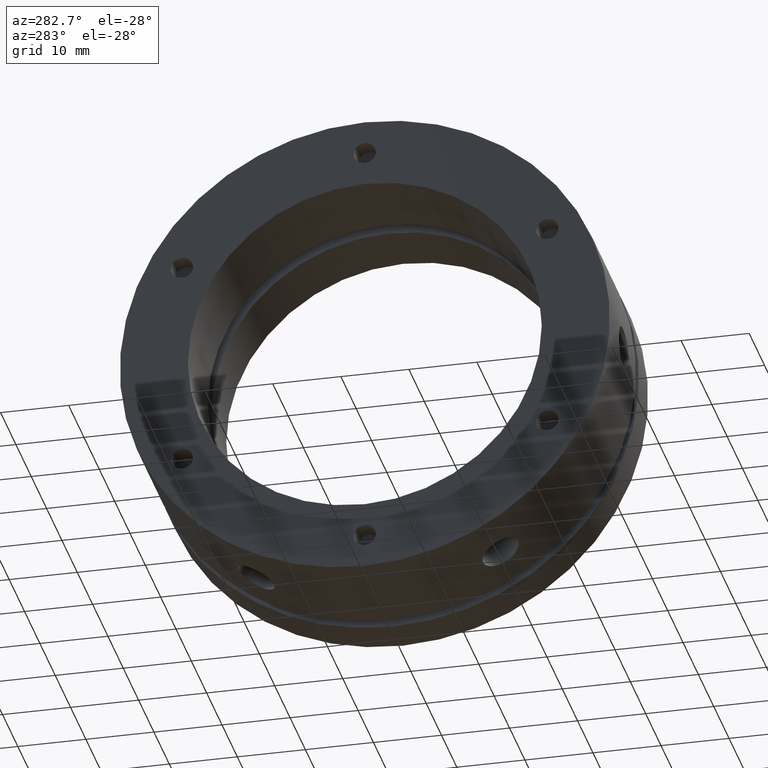
[diagram: clean part render]
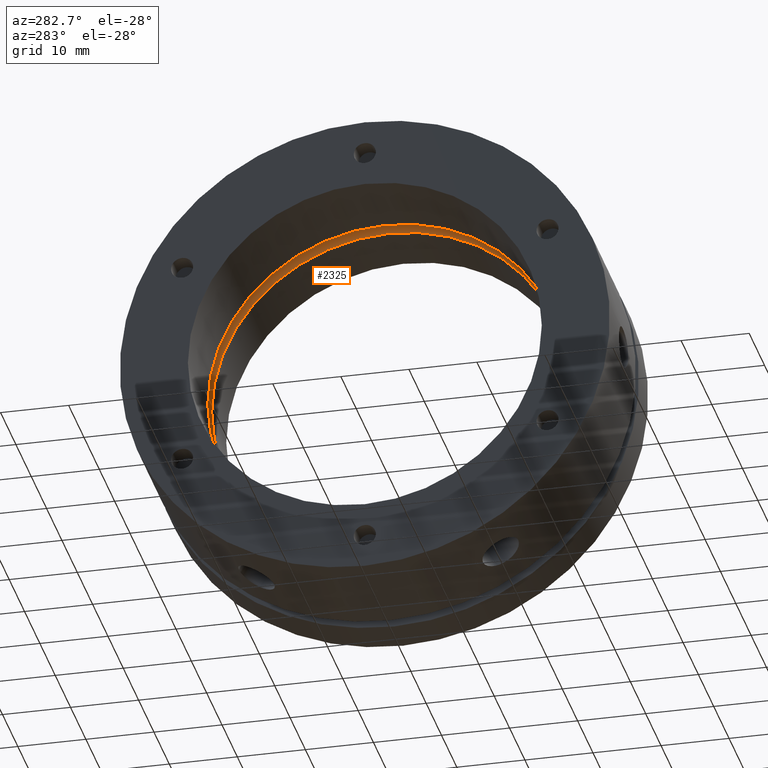
[diagram: same view with one face highlighted and labeled with its STEP entity id]
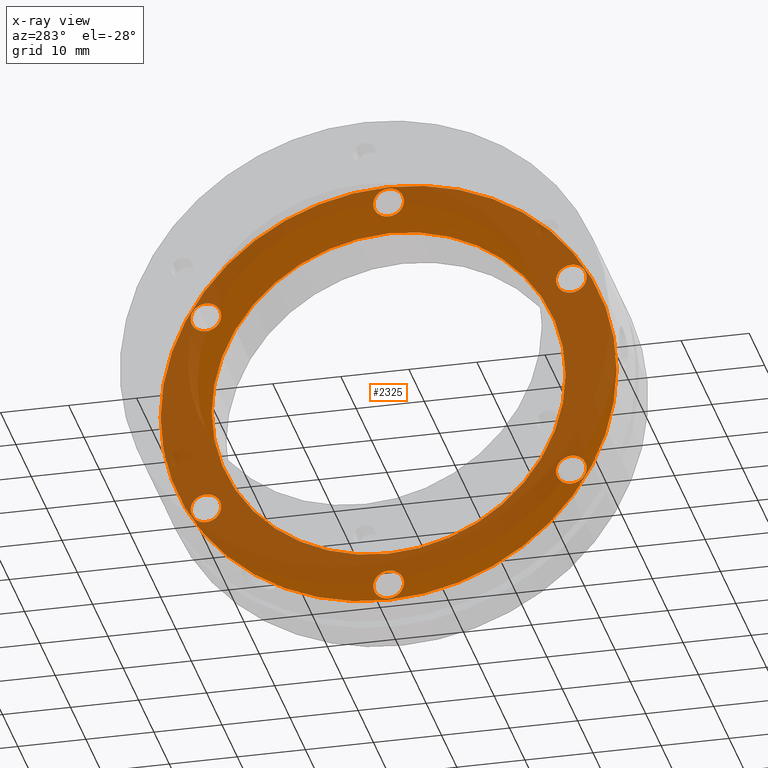
[diagram: x-ray of the same camera — body ghosted, the highlighted face saturated]
A machine part, auxiliary view. The second image highlights one B-rep face of the part: STEP entity #2325.
The next image is the same camera in x-ray: the body ghosted, the highlighted face saturated — about 67% of this face is hidden behind the body in this view.
In plain terms, the highlighted planar face has unit normal (1, 0, 0).
Its self-contained STEP definition (entity closure, byte-faithful):
#61 = AXIS2_PLACEMENT_3D ( 'NONE', #2941, #2942, #2943 ) ;
#64 = AXIS2_PLACEMENT_3D ( 'NONE', #3029, #3030, #3031 ) ;
#67 = AXIS2_PLACEMENT_3D ( 'NONE', #3084, #3085, #3086 ) ;
#69 = AXIS2_PLACEMENT_3D ( 'NONE', #3097, #3098, #3099 ) ;
#72 = AXIS2_PLACEMENT_3D ( 'NONE', #3110, #3111, #3112 ) ;
#74 = AXIS2_PLACEMENT_3D ( 'NONE', #3123, #3124, #3125 ) ;
#91 = AXIS2_PLACEMENT_3D ( 'NONE', #3207, #3205, #3211 ) ;
#109 = EDGE_LOOP ( 'NONE', ( #314, #315 ) ) ;
#110 = EDGE_LOOP ( 'NONE', ( #306, #307 ) ) ;
#113 = EDGE_LOOP ( 'NONE', ( #318, #319 ) ) ;
#123 = EDGE_LOOP ( 'NONE', ( #310, #311 ) ) ;
#306 = ORIENTED_EDGE ( 'NONE', *, *, #4668, .F. ) ;
#307 = ORIENTED_EDGE ( 'NONE', *, *, #1390, .F. ) ;
#308 = ORIENTED_EDGE ( 'NONE', *, *, #1402, .T. ) ;
#309 = ORIENTED_EDGE ( 'NONE', *, *, #2280, .T. ) ;
#310 = ORIENTED_EDGE ( 'NONE', *, *, #1397, .T. ) ;
#311 = ORIENTED_EDGE ( 'NONE', *, *, #2275, .T. ) ;
#312 = ORIENTED_EDGE ( 'NONE', *, *, #1396, .T. ) ;
#313 = ORIENTED_EDGE ( 'NONE', *, *, #2270, .T. ) ;
#314 = ORIENTED_EDGE ( 'NONE', *, *, #1400, .T. ) ;
#315 = ORIENTED_EDGE ( 'NONE', *, *, #2264, .T. ) ;
#316 = ORIENTED_EDGE ( 'NONE', *, *, #1399, .T. ) ;
#317 = ORIENTED_EDGE ( 'NONE', *, *, #2255, .T. ) ;
#318 = ORIENTED_EDGE ( 'NONE', *, *, #1436, .T. ) ;
#319 = ORIENTED_EDGE ( 'NONE', *, *, #2244, .T. ) ;
#320 = ORIENTED_EDGE ( 'NONE', *, *, #4723, .F. ) ;
#321 = ORIENTED_EDGE ( 'NONE', *, *, #1406, .F. ) ;
#726 = CIRCLE ( 'NONE', #909, 26.00000000000000400 ) ;
#733 = CIRCLE ( 'NONE', #982, 2.250000000000000400 ) ;
#734 = CIRCLE ( 'NONE', #981, 2.249999999999998700 ) ;
#736 = CIRCLE ( 'NONE', #984, 2.250000000000000400 ) ;
#737 = CIRCLE ( 'NONE', #985, 2.250000000000001800 ) ;
#739 = CIRCLE ( 'NONE', #987, 2.249999999999998700 ) ;
#743 = CIRCLE ( 'NONE', #991, 33.50000000000000700 ) ;
#771 = CIRCLE ( 'NONE', #1021, 2.250000000000000400 ) ;
#828 = CIRCLE ( 'NONE', #61, 2.250000000000000400 ) ;
#835 = CIRCLE ( 'NONE', #64, 2.250000000000000400 ) ;
#909 = AXIS2_PLACEMENT_3D ( 'NONE', #2152, #2153, #2154 ) ;
#981 = AXIS2_PLACEMENT_3D ( 'NONE', #2170, #2171, #2172 ) ;
#982 = AXIS2_PLACEMENT_3D ( 'NONE', #2173, #2174, #2175 ) ;
#984 = AXIS2_PLACEMENT_3D ( 'NONE', #2179, #2180, #2181 ) ;
#985 = AXIS2_PLACEMENT_3D ( 'NONE', #2182, #2183, #2184 ) ;
#987 = AXIS2_PLACEMENT_3D ( 'NONE', #2188, #2189, #2190 ) ;
#991 = AXIS2_PLACEMENT_3D ( 'NONE', #2201, #2202, #2203 ) ;
#1021 = AXIS2_PLACEMENT_3D ( 'NONE', #2605, #2606, #2607 ) ;
#1050 = VERTEX_POINT ( 'NONE', #1999 ) ;
#1051 = VERTEX_POINT ( 'NONE', #2000 ) ;
#1056 = VERTEX_POINT ( 'NONE', #2005 ) ;
#1057 = VERTEX_POINT ( 'NONE', #2006 ) ;
#1064 = VERTEX_POINT ( 'NONE', #2013 ) ;
#1065 = VERTEX_POINT ( 'NONE', #2014 ) ;
#1066 = VERTEX_POINT ( 'NONE', #2015 ) ;
#1069 = VERTEX_POINT ( 'NONE', #2018 ) ;
#1071 = VERTEX_POINT ( 'NONE', #2020 ) ;
#1072 = VERTEX_POINT ( 'NONE', #2021 ) ;
#1077 = VERTEX_POINT ( 'NONE', #2026 ) ;
#1078 = VERTEX_POINT ( 'NONE', #2027 ) ;
#1084 = VERTEX_POINT ( 'NONE', #2033 ) ;
#1087 = VERTEX_POINT ( 'NONE', #2036 ) ;
#1147 = VERTEX_POINT ( 'NONE', #2084 ) ;
#1161 = VERTEX_POINT ( 'NONE', #2096 ) ;
#1182 = EDGE_LOOP ( 'NONE', ( #308, #309 ) ) ;
#1189 = EDGE_LOOP ( 'NONE', ( #320, #321 ) ) ;
#1203 = EDGE_LOOP ( 'NONE', ( #316, #317 ) ) ;
#1212 = EDGE_LOOP ( 'NONE', ( #312, #313 ) ) ;
#1390 = EDGE_CURVE ( 'NONE', #1147, #1161, #726, .T. ) ;
#1396 = EDGE_CURVE ( 'NONE', #1072, #1071, #734, .T. ) ;
#1397 = EDGE_CURVE ( 'NONE', #1078, #1077, #733, .T. ) ;
#1399 = EDGE_CURVE ( 'NONE', #1064, #1069, #736, .T. ) ;
#1400 = EDGE_CURVE ( 'NONE', #1066, #1065, #737, .T. ) ;
#1402 = EDGE_CURVE ( 'NONE', #1084, #1087, #739, .T. ) ;
#1406 = EDGE_CURVE ( 'NONE', #1056, #1057, #743, .T. ) ;
#1436 = EDGE_CURVE ( 'NONE', #1050, #1051, #771, .T. ) ;
#1999 = CARTESIAN_POINT ( 'NONE',  ( 15.49999999999998900, 26.84678751731763000, 13.24999999999998900 ) ) ;
#2000 = CARTESIAN_POINT ( 'NONE',  ( 15.49999999999998900, 26.84678751731763000, 17.74999999999998900 ) ) ;
#2005 = CARTESIAN_POINT ( 'NONE',  ( 15.50000000000000400, 4.102566777143634600E-015, -33.50000000000000700 ) ) ;
#2006 = CARTESIAN_POINT ( 'NONE',  ( 15.50000000000000400, 0.0000000000000000000, 33.50000000000000700 ) ) ;
#2013 = CARTESIAN_POINT ( 'NONE',  ( 15.49999999999998900, 26.84678751731760800, -17.75000000000002500 ) ) ;
#2014 = CARTESIAN_POINT ( 'NONE',  ( 15.49999999999998900, -4.165346470191845000E-015, -28.75000000000001800 ) ) ;
#2015 = CARTESIAN_POINT ( 'NONE',  ( 15.49999999999998900, -4.440891999999999900E-015, -33.25000000000002100 ) ) ;
#2018 = CARTESIAN_POINT ( 'NONE',  ( 15.49999999999998900, 26.84678751731760800, -13.25000000000002500 ) ) ;
#2020 = CARTESIAN_POINT ( 'NONE',  ( 15.49999999999998900, -26.84678751731762200, -13.25000000000000400 ) ) ;
#2021 = CARTESIAN_POINT ( 'NONE',  ( 15.49999999999998900, -26.84678751731762200, -17.75000000000000400 ) ) ;
#2026 = CARTESIAN_POINT ( 'NONE',  ( 15.49999999999998900, -26.84678751731761200, 17.75000000000001400 ) ) ;
#2027 = CARTESIAN_POINT ( 'NONE',  ( 15.49999999999998900, -26.84678751731761200, 13.25000000000001400 ) ) ;
#2033 = CARTESIAN_POINT ( 'NONE',  ( 15.49999999999998900, 0.0000000000000000000, 28.75000000000001800 ) ) ;
#2036 = CARTESIAN_POINT ( 'NONE',  ( 15.49999999999998900, 2.755455298081546700E-016, 33.25000000000001400 ) ) ;
#2084 = CARTESIAN_POINT ( 'NONE',  ( 15.50000000000000500, 3.184081677783118600E-015, 26.00000000000000400 ) ) ;
#2096 = CARTESIAN_POINT ( 'NONE',  ( 15.50000000000000500, 0.0000000000000000000, -26.00000000000000400 ) ) ;
#2152 = CARTESIAN_POINT ( 'NONE',  ( 15.50000000000000500, 0.0000000000000000000, 0.0000000000000000000 ) ) ;
#2153 = DIRECTION ( 'NONE',  ( -1.000000000000000000, -0.0000000000000000000, -0.0000000000000000000 ) ) ;
#2154 = DIRECTION ( 'NONE',  ( 0.0000000000000000000, 0.0000000000000000000, -1.000000000000000000 ) ) ;
#2170 = CARTESIAN_POINT ( 'NONE',  ( 15.49999999999998900, -26.84678751731762200, -15.50000000000000400 ) ) ;
#2171 = DIRECTION ( 'NONE',  ( 1.000000000000000000, 0.0000000000000000000, 0.0000000000000000000 ) ) ;
#2172 = DIRECTION ( 'NONE',  ( 0.0000000000000000000, 0.0000000000000000000, -1.000000000000000000 ) ) ;
#2173 = CARTESIAN_POINT ( 'NONE',  ( 15.49999999999998900, -26.84678751731761200, 15.50000000000001400 ) ) ;
#2174 = DIRECTION ( 'NONE',  ( 1.000000000000000000, 0.0000000000000000000, 0.0000000000000000000 ) ) ;
#2175 = DIRECTION ( 'NONE',  ( 0.0000000000000000000, 0.0000000000000000000, -1.000000000000000000 ) ) ;
#2179 = CARTESIAN_POINT ( 'NONE',  ( 15.49999999999998900, 26.84678751731760800, -15.50000000000002700 ) ) ;
#2180 = DIRECTION ( 'NONE',  ( 1.000000000000000000, 0.0000000000000000000, 0.0000000000000000000 ) ) ;
#2181 = DIRECTION ( 'NONE',  ( 0.0000000000000000000, 0.0000000000000000000, -1.000000000000000000 ) ) ;
#2182 = CARTESIAN_POINT ( 'NONE',  ( 15.49999999999998900, -4.440891999999999900E-015, -31.00000000000002100 ) ) ;
#2183 = DIRECTION ( 'NONE',  ( 1.000000000000000000, 0.0000000000000000000, 0.0000000000000000000 ) ) ;
#2184 = DIRECTION ( 'NONE',  ( 0.0000000000000000000, 0.0000000000000000000, -1.000000000000000000 ) ) ;
#2188 = CARTESIAN_POINT ( 'NONE',  ( 15.49999999999998900, 0.0000000000000000000, 31.00000000000001800 ) ) ;
#2189 = DIRECTION ( 'NONE',  ( 1.000000000000000000, 0.0000000000000000000, 0.0000000000000000000 ) ) ;
#2190 = DIRECTION ( 'NONE',  ( 0.0000000000000000000, 0.0000000000000000000, -1.000000000000000000 ) ) ;
#2201 = CARTESIAN_POINT ( 'NONE',  ( 15.50000000000000400, 0.0000000000000000000, 0.0000000000000000000 ) ) ;
#2202 = DIRECTION ( 'NONE',  ( 1.000000000000000000, -0.0000000000000000000, -0.0000000000000000000 ) ) ;
#2203 = DIRECTION ( 'NONE',  ( 0.0000000000000000000, 0.0000000000000000000, 1.000000000000000000 ) ) ;
#2244 = EDGE_CURVE ( 'NONE', #1051, #1050, #828, .T. ) ;
#2255 = EDGE_CURVE ( 'NONE', #1069, #1064, #835, .T. ) ;
#2264 = EDGE_CURVE ( 'NONE', #1065, #1066, #3591, .T. ) ;
#2270 = EDGE_CURVE ( 'NONE', #1071, #1072, #3601, .T. ) ;
#2275 = EDGE_CURVE ( 'NONE', #1077, #1078, #3608, .T. ) ;
#2280 = EDGE_CURVE ( 'NONE', #1087, #1084, #3616, .T. ) ;
#2325 = ADVANCED_FACE ( 'NONE', ( #3656, #3663, #3659, #3657, #3661, #3664, #3665, #3666 ), #3209, .F. ) ;
#2605 = CARTESIAN_POINT ( 'NONE',  ( 15.49999999999998900, 26.84678751731763000, 15.49999999999998900 ) ) ;
#2606 = DIRECTION ( 'NONE',  ( 1.000000000000000000, 0.0000000000000000000, 0.0000000000000000000 ) ) ;
#2607 = DIRECTION ( 'NONE',  ( 0.0000000000000000000, 0.0000000000000000000, -1.000000000000000000 ) ) ;
#2941 = CARTESIAN_POINT ( 'NONE',  ( 15.49999999999998900, 26.84678751731763000, 15.49999999999998900 ) ) ;
#2942 = DIRECTION ( 'NONE',  ( 1.000000000000000000, 0.0000000000000000000, 0.0000000000000000000 ) ) ;
#2943 = DIRECTION ( 'NONE',  ( 0.0000000000000000000, 0.0000000000000000000, -1.000000000000000000 ) ) ;
#3029 = CARTESIAN_POINT ( 'NONE',  ( 15.49999999999998900, 26.84678751731760800, -15.50000000000002700 ) ) ;
#3030 = DIRECTION ( 'NONE',  ( 1.000000000000000000, 0.0000000000000000000, 0.0000000000000000000 ) ) ;
#3031 = DIRECTION ( 'NONE',  ( 0.0000000000000000000, 0.0000000000000000000, -1.000000000000000000 ) ) ;
#3084 = CARTESIAN_POINT ( 'NONE',  ( 15.49999999999998900, -4.440891999999999900E-015, -31.00000000000002100 ) ) ;
#3085 = DIRECTION ( 'NONE',  ( 1.000000000000000000, 0.0000000000000000000, 0.0000000000000000000 ) ) ;
#3086 = DIRECTION ( 'NONE',  ( 0.0000000000000000000, 0.0000000000000000000, -1.000000000000000000 ) ) ;
#3097 = CARTESIAN_POINT ( 'NONE',  ( 15.49999999999998900, -26.84678751731762200, -15.50000000000000400 ) ) ;
#3098 = DIRECTION ( 'NONE',  ( 1.000000000000000000, 0.0000000000000000000, 0.0000000000000000000 ) ) ;
#3099 = DIRECTION ( 'NONE',  ( 0.0000000000000000000, 0.0000000000000000000, -1.000000000000000000 ) ) ;
#3110 = CARTESIAN_POINT ( 'NONE',  ( 15.49999999999998900, -26.84678751731761200, 15.50000000000001400 ) ) ;
#3111 = DIRECTION ( 'NONE',  ( 1.000000000000000000, 0.0000000000000000000, 0.0000000000000000000 ) ) ;
#3112 = DIRECTION ( 'NONE',  ( 0.0000000000000000000, 0.0000000000000000000, -1.000000000000000000 ) ) ;
#3123 = CARTESIAN_POINT ( 'NONE',  ( 15.49999999999998900, 0.0000000000000000000, 31.00000000000001800 ) ) ;
#3124 = DIRECTION ( 'NONE',  ( 1.000000000000000000, 0.0000000000000000000, 0.0000000000000000000 ) ) ;
#3125 = DIRECTION ( 'NONE',  ( 0.0000000000000000000, 0.0000000000000000000, -1.000000000000000000 ) ) ;
#3205 = DIRECTION ( 'NONE',  ( 1.000000000000000000, -0.0000000000000000000, 0.0000000000000000000 ) ) ;
#3207 = CARTESIAN_POINT ( 'NONE',  ( 15.50000000000000500, 16.75000000000000400, 0.0000000000000000000 ) ) ;
#3209 = PLANE ( 'NONE',  #91 ) ;
#3211 = DIRECTION ( 'NONE',  ( 0.0000000000000000000, 0.0000000000000000000, -1.000000000000000000 ) ) ;
#3579 = CARTESIAN_POINT ( 'NONE',  ( 15.50000000000000500, 0.0000000000000000000, 0.0000000000000000000 ) ) ;
#3580 = DIRECTION ( 'NONE',  ( -1.000000000000000000, -0.0000000000000000000, -0.0000000000000000000 ) ) ;
#3581 = DIRECTION ( 'NONE',  ( 0.0000000000000000000, 0.0000000000000000000, -1.000000000000000000 ) ) ;
#3591 = CIRCLE ( 'NONE', #67, 2.250000000000001800 ) ;
#3601 = CIRCLE ( 'NONE', #69, 2.249999999999998700 ) ;
#3608 = CIRCLE ( 'NONE', #72, 2.250000000000000400 ) ;
#3616 = CIRCLE ( 'NONE', #74, 2.249999999999998700 ) ;
#3656 = FACE_BOUND ( 'NONE', #110, .T. ) ;
#3657 = FACE_BOUND ( 'NONE', #1212, .T. ) ;
#3659 = FACE_BOUND ( 'NONE', #123, .T. ) ;
#3661 = FACE_BOUND ( 'NONE', #109, .T. ) ;
#3663 = FACE_BOUND ( 'NONE', #1182, .T. ) ;
#3664 = FACE_BOUND ( 'NONE', #1203, .T. ) ;
#3665 = FACE_BOUND ( 'NONE', #113, .T. ) ;
#3666 = FACE_OUTER_BOUND ( 'NONE', #1189, .T. ) ;
#3978 = AXIS2_PLACEMENT_3D ( 'NONE', #3579, #3580, #3581 ) ;
#3999 = AXIS2_PLACEMENT_3D ( 'NONE', #4488, #4489, #4490 ) ;
#4159 = CIRCLE ( 'NONE', #3978, 26.00000000000000400 ) ;
#4247 = CIRCLE ( 'NONE', #3999, 33.50000000000000700 ) ;
#4488 = CARTESIAN_POINT ( 'NONE',  ( 15.50000000000000400, 0.0000000000000000000, 0.0000000000000000000 ) ) ;
#4489 = DIRECTION ( 'NONE',  ( 1.000000000000000000, -0.0000000000000000000, -0.0000000000000000000 ) ) ;
#4490 = DIRECTION ( 'NONE',  ( 0.0000000000000000000, 0.0000000000000000000, 1.000000000000000000 ) ) ;
#4668 = EDGE_CURVE ( 'NONE', #1161, #1147, #4159, .T. ) ;
#4723 = EDGE_CURVE ( 'NONE', #1057, #1056, #4247, .T. ) ;